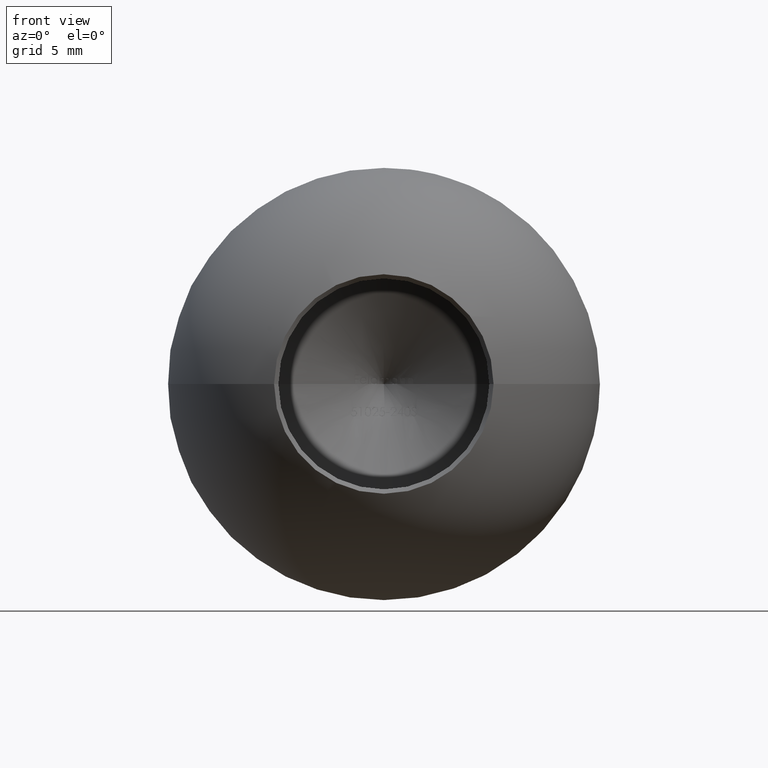
[diagram: clean part render]
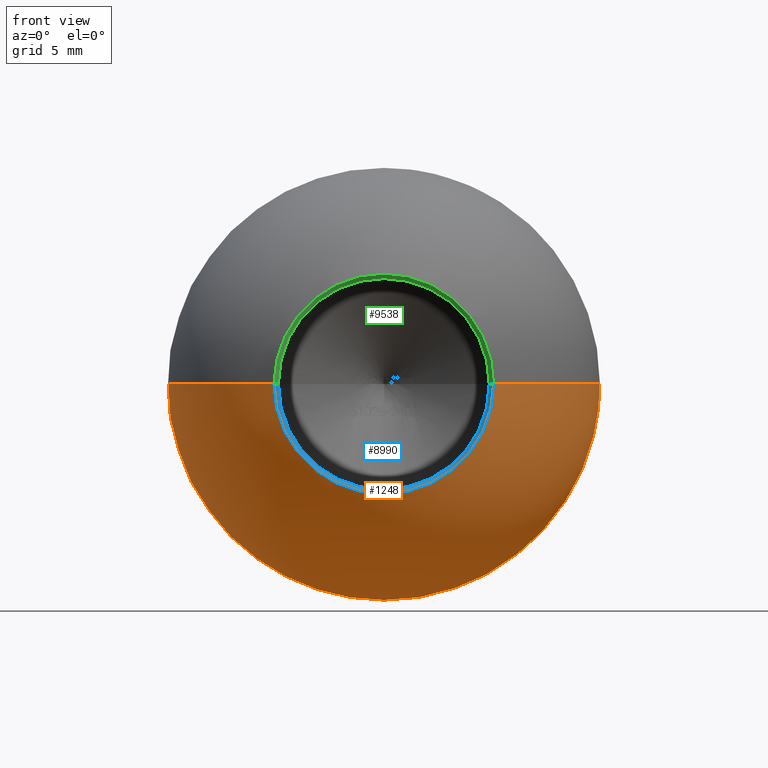
[diagram: same view with three faces highlighted in distinct colors, each labeled with its STEP entity id]
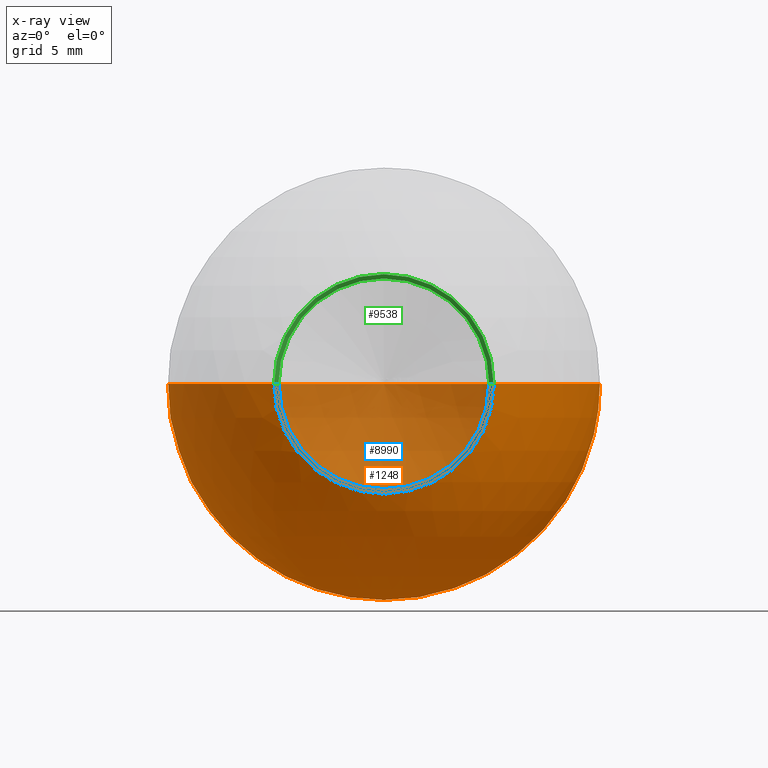
[diagram: x-ray of the same camera — body ghosted, the three highlighted faces saturated]
A machine part, front view with three faces highlighted in distinct colors.
The next image is the same camera in x-ray (body ghosted, the three faces saturated) — at least one of them is partly hidden behind the body in this view.
Their STEP definitions:

[orange] entity #1248 — the highlighted spherical surface has radius 12.5 mm.
#384 = CIRCLE ( 'NONE', #9621, 12.50000000000000000 ) ;
#484 = VERTEX_POINT ( 'NONE', #11404 ) ;
#695 = DIRECTION ( 'NONE',  ( -3.795949471969979100E-019, -1.000000000000000000, -0.0000000000000000000 ) ) ;
#974 = FACE_OUTER_BOUND ( 'NONE', #5640, .T. ) ;
#1248 = ADVANCED_FACE ( 'NONE', ( #974 ), #8784, .T. ) ;
#1584 = CARTESIAN_POINT ( 'NONE',  ( 0.0000000000000000000, 0.0000000000000000000, 0.0000000000000000000 ) ) ;
#1868 = CIRCLE ( 'NONE', #6435, 6.350000000000000500 ) ;
#2949 = EDGE_CURVE ( 'NONE', #12081, #484, #1868, .T. ) ;
#3099 = VERTEX_POINT ( 'NONE', #9069 ) ;
#3409 = EDGE_CURVE ( 'NONE', #3099, #12081, #384, .T. ) ;
#3628 = DIRECTION ( 'NONE',  ( 0.0000000000000000000, 0.0000000000000000000, -1.000000000000000000 ) ) ;
#3856 = DIRECTION ( 'NONE',  ( 1.000000000000000000, 0.0000000000000000000, -1.224646799147353200E-016 ) ) ;
#4753 = ORIENTED_EDGE ( 'NONE', *, *, #2949, .F. ) ;
#5321 = ORIENTED_EDGE ( 'NONE', *, *, #10096, .T. ) ;
#5640 = EDGE_LOOP ( 'NONE', ( #7222, #5321, #4753 ) ) ;
#5889 = CARTESIAN_POINT ( 'NONE',  ( 0.0000000000000000000, 0.0000000000000000000, 0.0000000000000000000 ) ) ;
#6428 = DIRECTION ( 'NONE',  ( 1.000000000000000000, -3.795949471969979500E-019, 0.0000000000000000000 ) ) ;
#6435 = AXIS2_PLACEMENT_3D ( 'NONE', #12374, #695, #11260 ) ;
#7222 = ORIENTED_EDGE ( 'NONE', *, *, #3409, .F. ) ;
#8271 = DIRECTION ( 'NONE',  ( -0.0000000000000000000, 0.0000000000000000000, 1.000000000000000000 ) ) ;
#8385 = DIRECTION ( 'NONE',  ( -1.000000000000000000, 0.0000000000000000000, 0.0000000000000000000 ) ) ;
#8679 = CARTESIAN_POINT ( 'NONE',  ( -6.350000000000000500, -10.76696336020514100, 7.776507174585693100E-016 ) ) ;
#8784 = SPHERICAL_SURFACE ( 'NONE', #12289, 12.50000000000000000 ) ;
#9069 = CARTESIAN_POINT ( 'NONE',  ( 7.701491863070581600E-016, 12.50000000000000000, 0.0000000000000000000 ) ) ;
#9621 = AXIS2_PLACEMENT_3D ( 'NONE', #5889, #11532, #3856 ) ;
#10096 = EDGE_CURVE ( 'NONE', #3099, #484, #10667, .T. ) ;
#10667 = CIRCLE ( 'NONE', #10691, 12.50000000000000000 ) ;
#10691 = AXIS2_PLACEMENT_3D ( 'NONE', #12192, #3628, #8385 ) ;
#11260 = DIRECTION ( 'NONE',  ( 1.000000000000000000, 0.0000000000000000000, 0.0000000000000000000 ) ) ;
#11404 = CARTESIAN_POINT ( 'NONE',  ( 6.350000000000000500, -10.76696336020514100, 0.0000000000000000000 ) ) ;
#11532 = DIRECTION ( 'NONE',  ( 1.224646799147353200E-016, -4.648697370573120600E-035, 1.000000000000000000 ) ) ;
#12081 = VERTEX_POINT ( 'NONE', #8679 ) ;
#12192 = CARTESIAN_POINT ( 'NONE',  ( 0.0000000000000000000, 0.0000000000000000000, 0.0000000000000000000 ) ) ;
#12289 = AXIS2_PLACEMENT_3D ( 'NONE', #1584, #8271, #6428 ) ;
#12374 = CARTESIAN_POINT ( 'NONE',  ( -8.832021728151556100E-018, -10.76696336020514100, 0.0000000000000000000 ) ) ;

[blue] entity #8990 — the highlighted conical surface has half-angle 45 deg.
#396 = CIRCLE ( 'NONE', #5668, 6.100000000000003200 ) ;
#484 = VERTEX_POINT ( 'NONE', #11404 ) ;
#695 = DIRECTION ( 'NONE',  ( -3.795949471969979100E-019, -1.000000000000000000, -0.0000000000000000000 ) ) ;
#1104 = VERTEX_POINT ( 'NONE', #3922 ) ;
#1351 = ORIENTED_EDGE ( 'NONE', *, *, #1610, .F. ) ;
#1610 = EDGE_CURVE ( 'NONE', #11015, #1104, #396, .T. ) ;
#1868 = CIRCLE ( 'NONE', #6435, 6.350000000000000500 ) ;
#1953 = EDGE_CURVE ( 'NONE', #11015, #12081, #5511, .T. ) ;
#2864 = ORIENTED_EDGE ( 'NONE', *, *, #7483, .F. ) ;
#2949 = EDGE_CURVE ( 'NONE', #12081, #484, #1868, .T. ) ;
#3161 = CARTESIAN_POINT ( 'NONE',  ( 6.100000000000003200, -10.51696336020513400, 0.0000000000000000000 ) ) ;
#3273 = ORIENTED_EDGE ( 'NONE', *, *, #2949, .T. ) ;
#3510 = CARTESIAN_POINT ( 'NONE',  ( -6.100000000000003200, -10.51696336020513400, 7.470345474798858200E-016 ) ) ;
#3922 = CARTESIAN_POINT ( 'NONE',  ( 6.100000000000003200, -10.51696336020513400, 0.0000000000000000000 ) ) ;
#3929 = DIRECTION ( 'NONE',  ( -3.795949471969979100E-019, -1.000000000000000000, -0.0000000000000000000 ) ) ;
#4062 = FACE_OUTER_BOUND ( 'NONE', #11394, .T. ) ;
#4121 = CARTESIAN_POINT ( 'NONE',  ( -6.100000000000003200, -10.51696336020513400, 7.623426324692276200E-016 ) ) ;
#5511 = LINE ( 'NONE', #3510, #8632 ) ;
#5668 = AXIS2_PLACEMENT_3D ( 'NONE', #5951, #3929, #10696 ) ;
#5893 = VECTOR ( 'NONE', #7815, 1000.000000000000000 ) ;
#5951 = CARTESIAN_POINT ( 'NONE',  ( -8.737122991352304000E-018, -10.51696336020513400, 0.0000000000000000000 ) ) ;
#6210 = LINE ( 'NONE', #3161, #5893 ) ;
#6435 = AXIS2_PLACEMENT_3D ( 'NONE', #12374, #695, #11260 ) ;
#7389 = DIRECTION ( 'NONE',  ( -0.7071067811865340300, -0.7071067811865610100, 8.659560562354767700E-017 ) ) ;
#7483 = EDGE_CURVE ( 'NONE', #1104, #484, #6210, .T. ) ;
#7815 = DIRECTION ( 'NONE',  ( 0.7071067811865340300, -0.7071067811865610100, 0.0000000000000000000 ) ) ;
#8472 = CARTESIAN_POINT ( 'NONE',  ( -8.737122991352304000E-018, -10.51696336020513400, 0.0000000000000000000 ) ) ;
#8632 = VECTOR ( 'NONE', #7389, 1000.000000000000000 ) ;
#8679 = CARTESIAN_POINT ( 'NONE',  ( -6.350000000000000500, -10.76696336020514100, 7.776507174585693100E-016 ) ) ;
#8990 = ADVANCED_FACE ( 'NONE', ( #4062 ), #11598, .F. ) ;
#9502 = ORIENTED_EDGE ( 'NONE', *, *, #1953, .T. ) ;
#10371 = DIRECTION ( 'NONE',  ( 1.000000000000000000, 0.0000000000000000000, 0.0000000000000000000 ) ) ;
#10696 = DIRECTION ( 'NONE',  ( 1.000000000000000000, 0.0000000000000000000, 0.0000000000000000000 ) ) ;
#11015 = VERTEX_POINT ( 'NONE', #4121 ) ;
#11260 = DIRECTION ( 'NONE',  ( 1.000000000000000000, 0.0000000000000000000, 0.0000000000000000000 ) ) ;
#11280 = AXIS2_PLACEMENT_3D ( 'NONE', #8472, #12317, #10371 ) ;
#11394 = EDGE_LOOP ( 'NONE', ( #1351, #9502, #3273, #2864 ) ) ;
#11404 = CARTESIAN_POINT ( 'NONE',  ( 6.350000000000000500, -10.76696336020514100, 0.0000000000000000000 ) ) ;
#11598 = CONICAL_SURFACE ( 'NONE', #11280, 6.100000000000003200, 0.7853981633974291800 ) ;
#12081 = VERTEX_POINT ( 'NONE', #8679 ) ;
#12317 = DIRECTION ( 'NONE',  ( -3.795949471969979100E-019, -1.000000000000000000, -0.0000000000000000000 ) ) ;
#12374 = CARTESIAN_POINT ( 'NONE',  ( -8.832021728151556100E-018, -10.76696336020514100, 0.0000000000000000000 ) ) ;

[green] entity #9538 — the highlighted conical surface has half-angle 45 deg.
#430 = DIRECTION ( 'NONE',  ( -3.795949471969979100E-019, -1.000000000000000000, -0.0000000000000000000 ) ) ;
#460 = AXIS2_PLACEMENT_3D ( 'NONE', #12244, #5479, #8364 ) ;
#484 = VERTEX_POINT ( 'NONE', #11404 ) ;
#821 = EDGE_CURVE ( 'NONE', #1104, #11015, #2039, .T. ) ;
#932 = DIRECTION ( 'NONE',  ( -3.795949471969979100E-019, -1.000000000000000000, -0.0000000000000000000 ) ) ;
#1104 = VERTEX_POINT ( 'NONE', #3922 ) ;
#1412 = EDGE_CURVE ( 'NONE', #484, #12081, #7463, .T. ) ;
#1574 = AXIS2_PLACEMENT_3D ( 'NONE', #6268, #430, #10088 ) ;
#1953 = EDGE_CURVE ( 'NONE', #11015, #12081, #5511, .T. ) ;
#2039 = CIRCLE ( 'NONE', #1574, 6.100000000000003200 ) ;
#3161 = CARTESIAN_POINT ( 'NONE',  ( 6.100000000000003200, -10.51696336020513400, 0.0000000000000000000 ) ) ;
#3455 = AXIS2_PLACEMENT_3D ( 'NONE', #9456, #932, #9578 ) ;
#3504 = ORIENTED_EDGE ( 'NONE', *, *, #1953, .F. ) ;
#3510 = CARTESIAN_POINT ( 'NONE',  ( -6.100000000000003200, -10.51696336020513400, 7.470345474798858200E-016 ) ) ;
#3922 = CARTESIAN_POINT ( 'NONE',  ( 6.100000000000003200, -10.51696336020513400, 0.0000000000000000000 ) ) ;
#4121 = CARTESIAN_POINT ( 'NONE',  ( -6.100000000000003200, -10.51696336020513400, 7.623426324692276200E-016 ) ) ;
#5479 = DIRECTION ( 'NONE',  ( -3.795949471969979100E-019, -1.000000000000000000, -0.0000000000000000000 ) ) ;
#5511 = LINE ( 'NONE', #3510, #8632 ) ;
#5893 = VECTOR ( 'NONE', #7815, 1000.000000000000000 ) ;
#6210 = LINE ( 'NONE', #3161, #5893 ) ;
#6268 = CARTESIAN_POINT ( 'NONE',  ( -8.737122991352304000E-018, -10.51696336020513400, 0.0000000000000000000 ) ) ;
#6633 = CONICAL_SURFACE ( 'NONE', #3455, 6.100000000000003200, 0.7853981633974291800 ) ;
#7389 = DIRECTION ( 'NONE',  ( -0.7071067811865340300, -0.7071067811865610100, 8.659560562354767700E-017 ) ) ;
#7463 = CIRCLE ( 'NONE', #460, 6.350000000000000500 ) ;
#7483 = EDGE_CURVE ( 'NONE', #1104, #484, #6210, .T. ) ;
#7815 = DIRECTION ( 'NONE',  ( 0.7071067811865340300, -0.7071067811865610100, 0.0000000000000000000 ) ) ;
#8364 = DIRECTION ( 'NONE',  ( 1.000000000000000000, 0.0000000000000000000, 0.0000000000000000000 ) ) ;
#8534 = ORIENTED_EDGE ( 'NONE', *, *, #7483, .T. ) ;
#8632 = VECTOR ( 'NONE', #7389, 1000.000000000000000 ) ;
#8679 = CARTESIAN_POINT ( 'NONE',  ( -6.350000000000000500, -10.76696336020514100, 7.776507174585693100E-016 ) ) ;
#9456 = CARTESIAN_POINT ( 'NONE',  ( -8.737122991352304000E-018, -10.51696336020513400, 0.0000000000000000000 ) ) ;
#9538 = ADVANCED_FACE ( 'NONE', ( #12070 ), #6633, .F. ) ;
#9578 = DIRECTION ( 'NONE',  ( 1.000000000000000000, 0.0000000000000000000, 0.0000000000000000000 ) ) ;
#10088 = DIRECTION ( 'NONE',  ( 1.000000000000000000, 0.0000000000000000000, 0.0000000000000000000 ) ) ;
#11015 = VERTEX_POINT ( 'NONE', #4121 ) ;
#11048 = ORIENTED_EDGE ( 'NONE', *, *, #1412, .T. ) ;
#11404 = CARTESIAN_POINT ( 'NONE',  ( 6.350000000000000500, -10.76696336020514100, 0.0000000000000000000 ) ) ;
#11999 = EDGE_LOOP ( 'NONE', ( #3504, #12458, #8534, #11048 ) ) ;
#12070 = FACE_OUTER_BOUND ( 'NONE', #11999, .T. ) ;
#12081 = VERTEX_POINT ( 'NONE', #8679 ) ;
#12244 = CARTESIAN_POINT ( 'NONE',  ( -8.832021728151556100E-018, -10.76696336020514100, 0.0000000000000000000 ) ) ;
#12458 = ORIENTED_EDGE ( 'NONE', *, *, #821, .F. ) ;